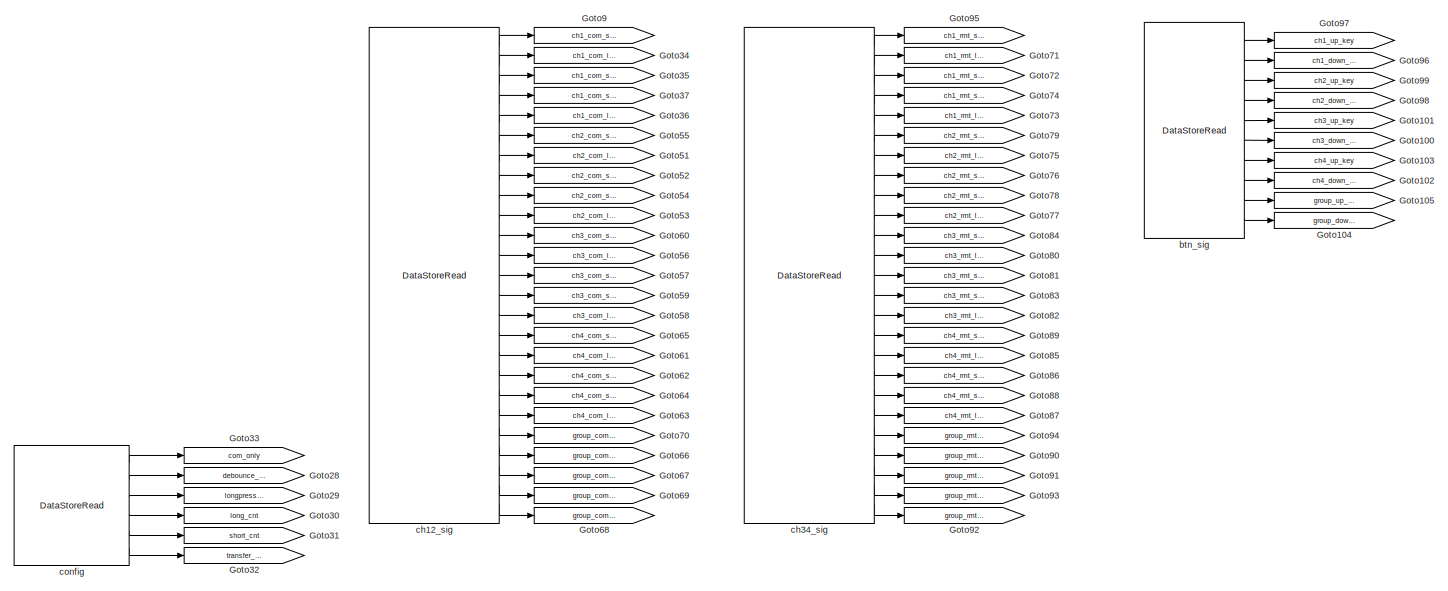
[diagram: root canvas - part 1/7, top center region]
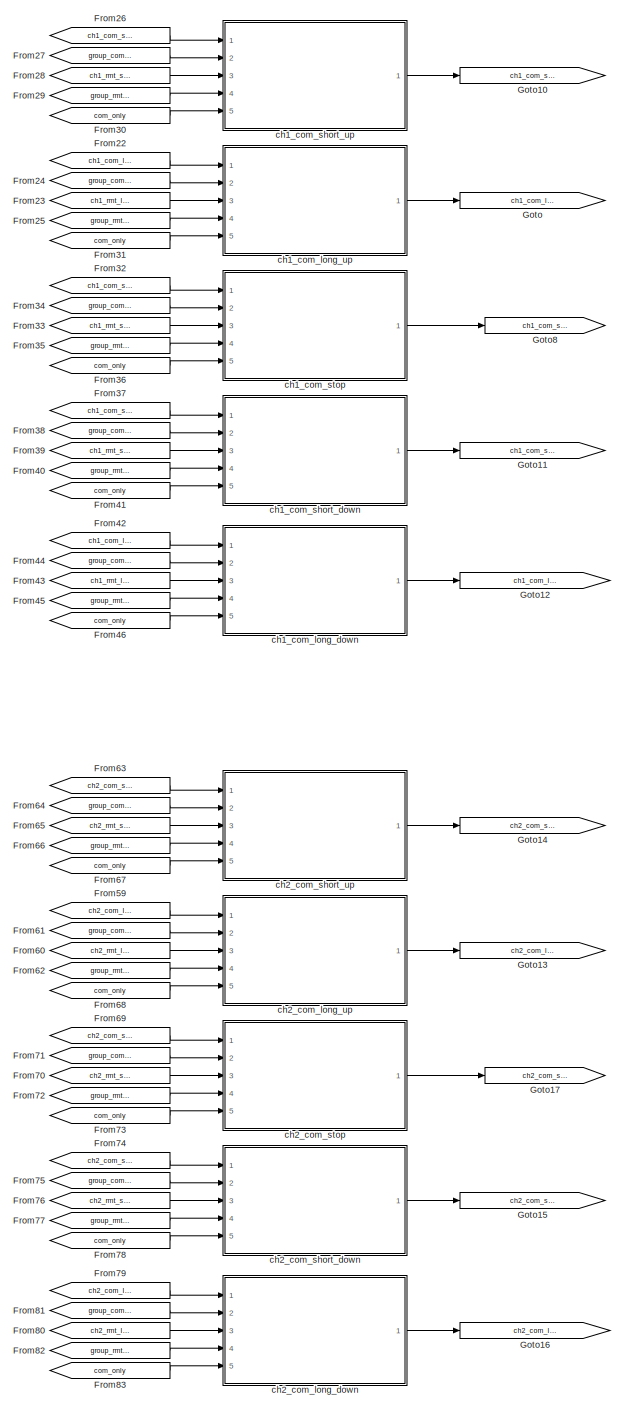
[diagram: root canvas - part 2/7, middle left region]
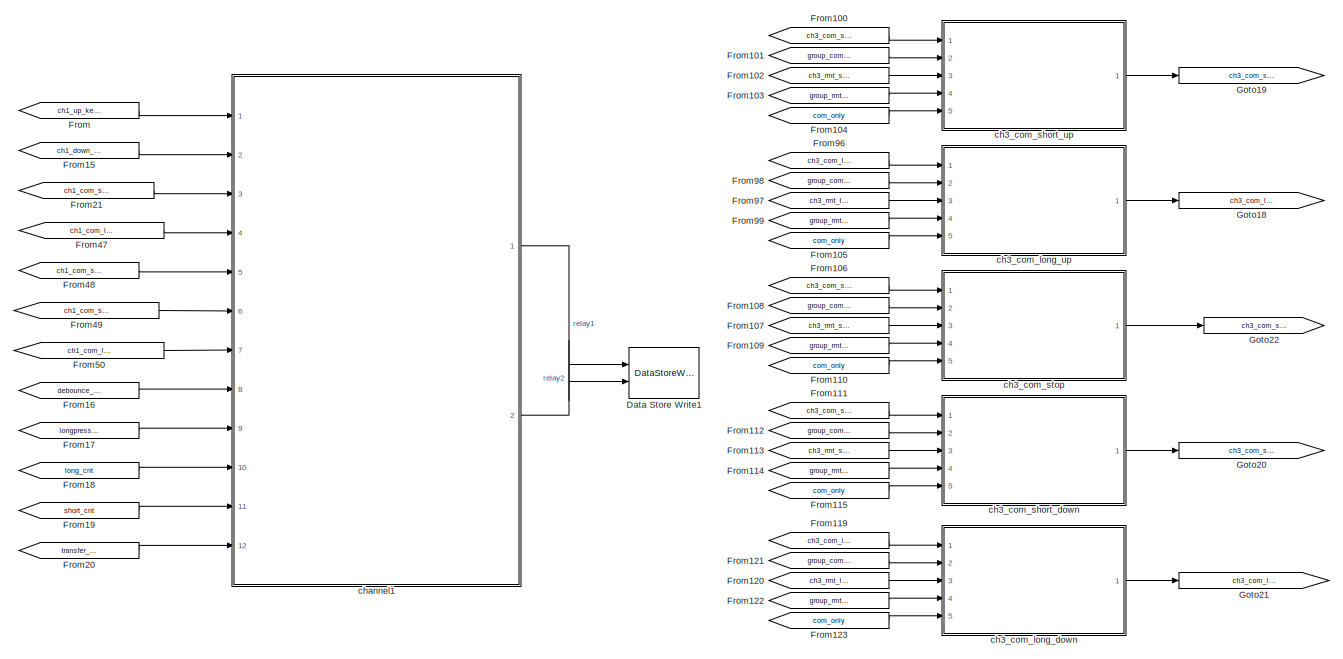
[diagram: root canvas - part 3/7, central region]
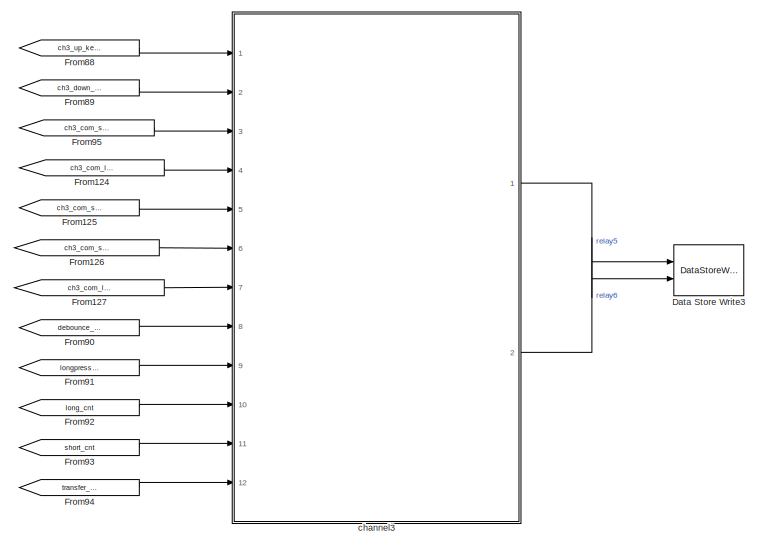
[diagram: root canvas - part 4/7, middle right region]
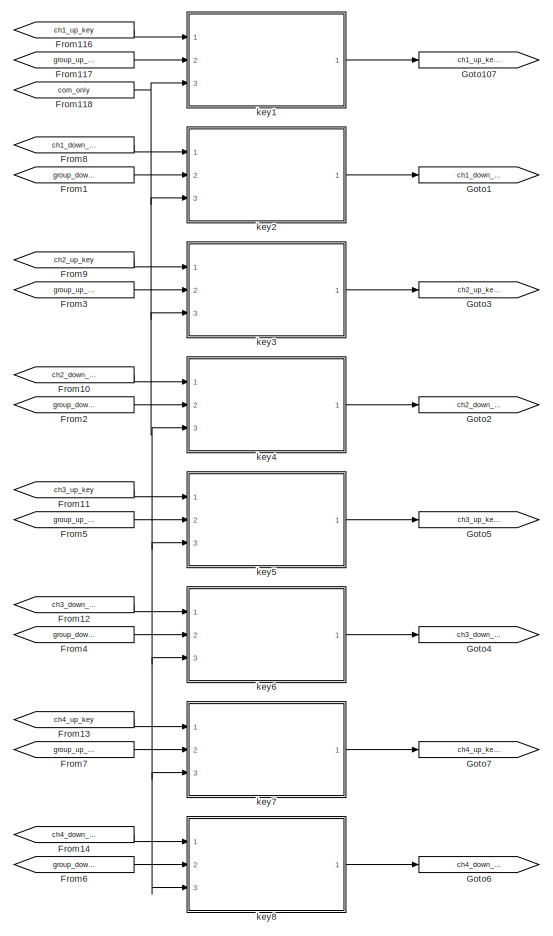
[diagram: root canvas - part 5/7, middle left region]
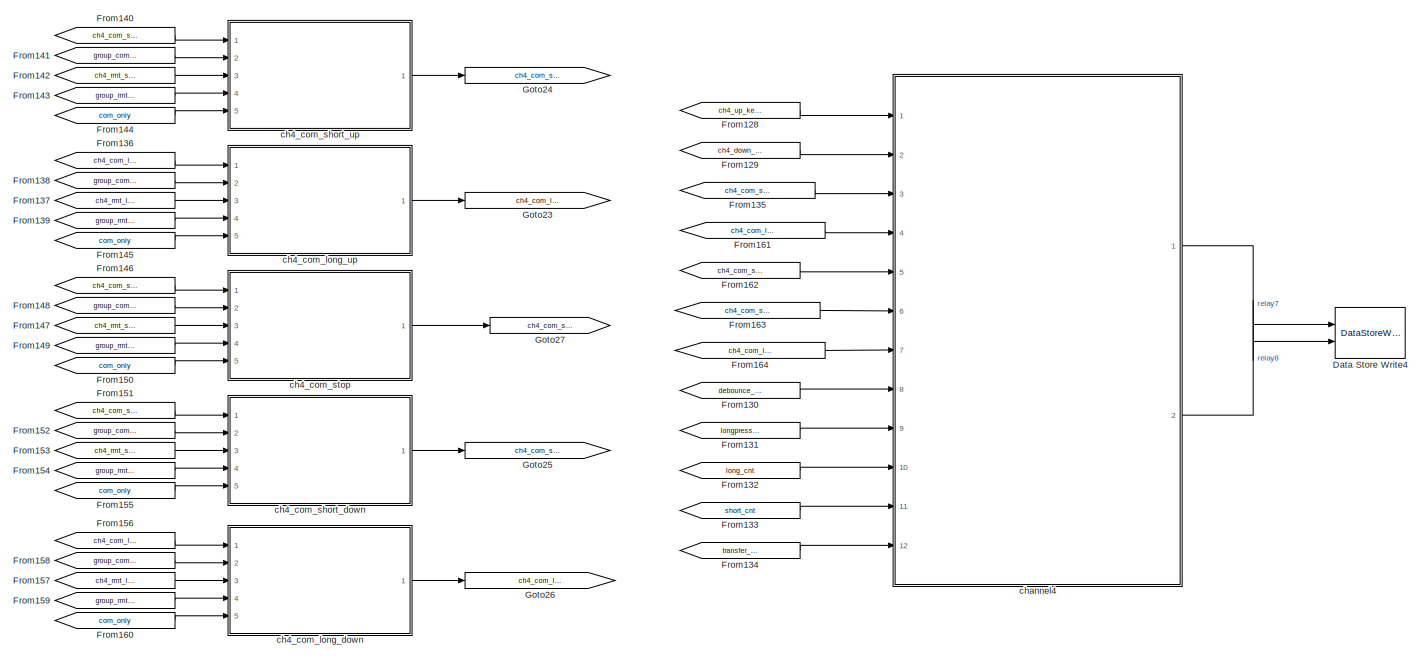
[diagram: root canvas - part 6/7, bottom right region]
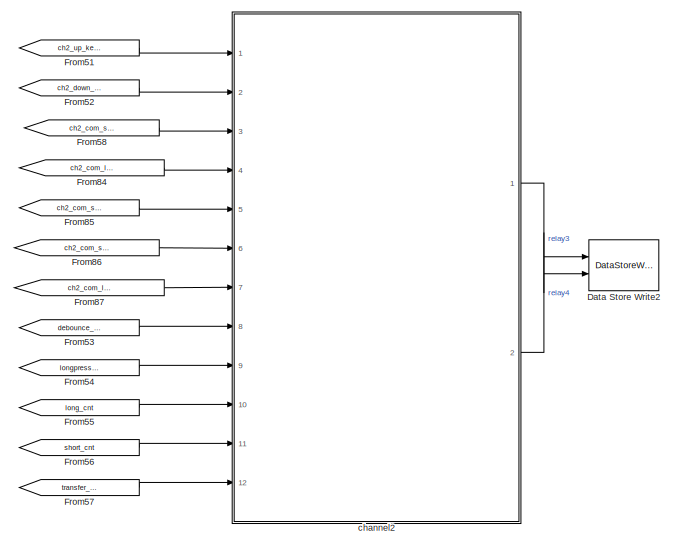
[diagram: root canvas - part 7/7, bottom center region]
MODEL slx_22f0414de832
KIND model
BLOCK [DataStoreWrite] Data Store Write1
  DataStoreElements = relay(1)#relay(2)
  DataStoreName = relay
  IndexOptions = Index vector (dialog)
  Indices = 1
  OutputSizes = 1
  Ports = [2]
BLOCK [DataStoreWrite] Data Store Write2
  DataStoreElements = relay(3)#relay(4)
  DataStoreName = relay
  IndexOptions = Index vector (dialog)
  Indices = 1
  OutputSizes = 1
  Ports = [2]
BLOCK [DataStoreWrite] Data Store Write3
  DataStoreElements = relay(5)#relay(6)
  DataStoreName = relay
  IndexOptions = Index vector (dialog)
  Indices = 1
  OutputSizes = 1
  Ports = [2]
BLOCK [DataStoreWrite] Data Store Write4
  DataStoreElements = relay(7)#relay(8)
  DataStoreName = relay
  IndexOptions = Index vector (dialog)
  Indices = 1
  OutputSizes = 1
  Ports = [2]
BLOCK [From] From
  GotoTag = ch1_up_key_sig
BLOCK [From] From1
  GotoTag = group_down_key
BLOCK [From] From10
  GotoTag = ch2_down_key
BLOCK [From] From100
  GotoTag = ch3_com_short_up
BLOCK [From] From101
  GotoTag = group_com_short_up
BLOCK [From] From102
  GotoTag = ch3_rmt_short_up
BLOCK [From] From103
  GotoTag = group_rmt_short_up
BLOCK [From] From104
  GotoTag = com_only
BLOCK [From] From105
  GotoTag = com_only
BLOCK [From] From106
  GotoTag = ch3_com_stop
BLOCK [From] From107
  GotoTag = ch3_rmt_stop
BLOCK [From] From108
  GotoTag = group_com_stop
BLOCK [From] From109
  GotoTag = group_rmt_stop
BLOCK [From] From11
  GotoTag = ch3_up_key
BLOCK [From] From110
  GotoTag = com_only
BLOCK [From] From111
  GotoTag = ch3_com_short_down
BLOCK [From] From112
  GotoTag = group_com_short_down
BLOCK [From] From113
  GotoTag = ch3_rmt_short_down
BLOCK [From] From114
  GotoTag = group_rmt_short_down
BLOCK [From] From115
  GotoTag = com_only
BLOCK [From] From116
  GotoTag = ch1_up_key
BLOCK [From] From117
  GotoTag = group_up_key
BLOCK [From] From118
  GotoTag = com_only
BLOCK [From] From119
  GotoTag = ch3_com_long_down
BLOCK [From] From12
  GotoTag = ch3_down_key
BLOCK [From] From120
  GotoTag = ch3_rmt_long_down
BLOCK [From] From121
  GotoTag = group_com_long_down
BLOCK [From] From122
  GotoTag = group_rmt_long_down
BLOCK [From] From123
  GotoTag = com_only
BLOCK [From] From124
  GotoTag = ch3_com_long_up_sig
BLOCK [From] From125
  GotoTag = ch3_com_stop_sig
BLOCK [From] From126
  GotoTag = ch3_com_short_down_sig
BLOCK [From] From127
  GotoTag = ch3_com_long_down_sig
BLOCK [From] From128
  GotoTag = ch4_up_key_sig
BLOCK [From] From129
  GotoTag = ch4_down_key_sig
BLOCK [From] From13
  GotoTag = ch4_up_key
BLOCK [From] From130
  GotoTag = debounce_cnt
BLOCK [From] From131
  GotoTag = longpress_cnt
BLOCK [From] From132
  GotoTag = long_cnt
BLOCK [From] From133
  GotoTag = short_cnt
BLOCK [From] From134
  GotoTag = transfer_cnt
BLOCK [From] From135
  GotoTag = ch4_com_short_up_sig
BLOCK [From] From136
  GotoTag = ch4_com_long_up
BLOCK [From] From137
  GotoTag = ch4_rmt_long_up
BLOCK [From] From138
  GotoTag = group_com_long_up
BLOCK [From] From139
  GotoTag = group_rmt_long_up
BLOCK [From] From14
  GotoTag = ch4_down_key
BLOCK [From] From140
  GotoTag = ch4_com_short_up
BLOCK [From] From141
  GotoTag = group_com_short_up
BLOCK [From] From142
  GotoTag = ch4_rmt_short_up
BLOCK [From] From143
  GotoTag = group_rmt_short_up
BLOCK [From] From144
  GotoTag = com_only
BLOCK [From] From145
  GotoTag = com_only
BLOCK [From] From146
  GotoTag = ch4_com_stop
BLOCK [From] From147
  GotoTag = ch4_rmt_stop
BLOCK [From] From148
  GotoTag = group_com_stop
BLOCK [From] From149
  GotoTag = group_rmt_stop
BLOCK [From] From15
  GotoTag = ch1_down_key_sig
BLOCK [From] From150
  GotoTag = com_only
BLOCK [From] From151
  GotoTag = ch4_com_short_down
BLOCK [From] From152
  GotoTag = group_com_short_down
BLOCK [From] From153
  GotoTag = ch4_rmt_short_down
BLOCK [From] From154
  GotoTag = group_rmt_short_down
BLOCK [From] From155
  GotoTag = com_only
BLOCK [From] From156
  GotoTag = ch4_com_long_down
BLOCK [From] From157
  GotoTag = ch4_rmt_long_down
BLOCK [From] From158
  GotoTag = group_com_long_down
BLOCK [From] From159
  GotoTag = group_rmt_long_down
BLOCK [From] From16
  GotoTag = debounce_cnt
BLOCK [From] From160
  GotoTag = com_only
BLOCK [From] From161
  GotoTag = ch4_com_long_up_sig
BLOCK [From] From162
  GotoTag = ch4_com_stop_sig
BLOCK [From] From163
  GotoTag = ch4_com_short_down_sig
BLOCK [From] From164
  GotoTag = ch4_com_long_down_sig
BLOCK [From] From17
  GotoTag = longpress_cnt
BLOCK [From] From18
  GotoTag = long_cnt
BLOCK [From] From19
  GotoTag = short_cnt
BLOCK [From] From2
  GotoTag = group_down_key
BLOCK [From] From20
  GotoTag = transfer_cnt
BLOCK [From] From21
  GotoTag = ch1_com_short_up_sig
BLOCK [From] From22
  GotoTag = ch1_com_long_up
BLOCK [From] From23
  GotoTag = ch1_rmt_long_up
BLOCK [From] From24
  GotoTag = group_com_long_up
BLOCK [From] From25
  GotoTag = group_rmt_long_up
BLOCK [From] From26
  GotoTag = ch1_com_short_up
BLOCK [From] From27
  GotoTag = group_com_short_up
BLOCK [From] From28
  GotoTag = ch1_rmt_short_up
BLOCK [From] From29
  GotoTag = group_rmt_short_up
BLOCK [From] From3
  GotoTag = group_up_key
BLOCK [From] From30
  GotoTag = com_only
BLOCK [From] From31
  GotoTag = com_only
BLOCK [From] From32
  GotoTag = ch1_com_stop
BLOCK [From] From33
  GotoTag = ch1_rmt_stop
BLOCK [From] From34
  GotoTag = group_com_stop
BLOCK [From] From35
  GotoTag = group_rmt_stop
BLOCK [From] From36
  GotoTag = com_only
BLOCK [From] From37
  GotoTag = ch1_com_short_down
BLOCK [From] From38
  GotoTag = group_com_short_down
BLOCK [From] From39
  GotoTag = ch1_rmt_short_down
BLOCK [From] From4
  GotoTag = group_down_key
BLOCK [From] From40
  GotoTag = group_rmt_short_down
BLOCK [From] From41
  GotoTag = com_only
BLOCK [From] From42
  GotoTag = ch1_com_long_down
BLOCK [From] From43
  GotoTag = ch1_rmt_long_down
BLOCK [From] From44
  GotoTag = group_com_long_down
BLOCK [From] From45
  GotoTag = group_rmt_long_down
BLOCK [From] From46
  GotoTag = com_only
BLOCK [From] From47
  GotoTag = ch1_com_long_up_sig
BLOCK [From] From48
  GotoTag = ch1_com_stop_sig
BLOCK [From] From49
  GotoTag = ch1_com_short_down_sig
BLOCK [From] From5
  GotoTag = group_up_key
BLOCK [From] From50
  GotoTag = ch1_com_long_down_sig
BLOCK [From] From51
  GotoTag = ch2_up_key_sig
BLOCK [From] From52
  GotoTag = ch2_down_key_sig
BLOCK [From] From53
  GotoTag = debounce_cnt
BLOCK [From] From54
  GotoTag = longpress_cnt
BLOCK [From] From55
  GotoTag = long_cnt
BLOCK [From] From56
  GotoTag = short_cnt
BLOCK [From] From57
  GotoTag = transfer_cnt
BLOCK [From] From58
  GotoTag = ch2_com_short_up_sig
BLOCK [From] From59
  GotoTag = ch2_com_long_up
BLOCK [From] From6
  GotoTag = group_down_key
BLOCK [From] From60
  GotoTag = ch2_rmt_long_up
BLOCK [From] From61
  GotoTag = group_com_long_up
BLOCK [From] From62
  GotoTag = group_rmt_long_up
BLOCK [From] From63
  GotoTag = ch2_com_short_up
BLOCK [From] From64
  GotoTag = group_com_short_up
BLOCK [From] From65
  GotoTag = ch2_rmt_short_up
BLOCK [From] From66
  GotoTag = group_rmt_short_up
BLOCK [From] From67
  GotoTag = com_only
BLOCK [From] From68
  GotoTag = com_only
BLOCK [From] From69
  GotoTag = ch2_com_stop
BLOCK [From] From7
  GotoTag = group_up_key
BLOCK [From] From70
  GotoTag = ch2_rmt_stop
BLOCK [From] From71
  GotoTag = group_com_stop
BLOCK [From] From72
  GotoTag = group_rmt_stop
BLOCK [From] From73
  GotoTag = com_only
BLOCK [From] From74
  GotoTag = ch2_com_short_down
BLOCK [From] From75
  GotoTag = group_com_short_down
BLOCK [From] From76
  GotoTag = ch2_rmt_short_down
BLOCK [From] From77
  GotoTag = group_rmt_short_down
BLOCK [From] From78
  GotoTag = com_only
BLOCK [From] From79
  GotoTag = ch2_com_long_down
BLOCK [From] From8
  GotoTag = ch1_down_key
BLOCK [From] From80
  GotoTag = ch2_rmt_long_down
BLOCK [From] From81
  GotoTag = group_com_long_down
BLOCK [From] From82
  GotoTag = group_rmt_long_down
BLOCK [From] From83
  GotoTag = com_only
BLOCK [From] From84
  GotoTag = ch2_com_long_up_sig
BLOCK [From] From85
  GotoTag = ch2_com_stop_sig
BLOCK [From] From86
  GotoTag = ch2_com_short_down_sig
BLOCK [From] From87
  GotoTag = ch2_com_long_down_sig
BLOCK [From] From88
  GotoTag = ch3_up_key_sig
BLOCK [From] From89
  GotoTag = ch3_down_key_sig
BLOCK [From] From9
  GotoTag = ch2_up_key
BLOCK [From] From90
  GotoTag = debounce_cnt
BLOCK [From] From91
  GotoTag = longpress_cnt
BLOCK [From] From92
  GotoTag = long_cnt
BLOCK [From] From93
  GotoTag = short_cnt
BLOCK [From] From94
  GotoTag = transfer_cnt
BLOCK [From] From95
  GotoTag = ch3_com_short_up_sig
BLOCK [From] From96
  GotoTag = ch3_com_long_up
BLOCK [From] From97
  GotoTag = ch3_rmt_long_up
BLOCK [From] From98
  GotoTag = group_com_long_up
BLOCK [From] From99
  GotoTag = group_rmt_long_up
BLOCK [Goto] Goto
  GotoTag = ch1_com_long_up_sig
BLOCK [Goto] Goto1
  GotoTag = ch1_down_key_sig
BLOCK [Goto] Goto10
  GotoTag = ch1_com_short_up_sig
BLOCK [Goto] Goto100
  GotoTag = ch3_down_key
BLOCK [Goto] Goto101
  GotoTag = ch3_up_key
BLOCK [Goto] Goto102
  GotoTag = ch4_down_key
BLOCK [Goto] Goto103
  GotoTag = ch4_up_key
BLOCK [Goto] Goto104
  GotoTag = group_down_key
BLOCK [Goto] Goto105
  GotoTag = group_up_key
BLOCK [Goto] Goto107
  GotoTag = ch1_up_key_sig
BLOCK [Goto] Goto11
  GotoTag = ch1_com_short_down_sig
BLOCK [Goto] Goto12
  GotoTag = ch1_com_long_down_sig
BLOCK [Goto] Goto13
  GotoTag = ch2_com_long_up_sig
BLOCK [Goto] Goto14
  GotoTag = ch2_com_short_up_sig
BLOCK [Goto] Goto15
  GotoTag = ch2_com_short_down_sig
BLOCK [Goto] Goto16
  GotoTag = ch2_com_long_down_sig
BLOCK [Goto] Goto17
  GotoTag = ch2_com_stop_sig
BLOCK [Goto] Goto18
  GotoTag = ch3_com_long_up_sig
BLOCK [Goto] Goto19
  GotoTag = ch3_com_short_up_sig
BLOCK [Goto] Goto2
  GotoTag = ch2_down_key_sig
BLOCK [Goto] Goto20
  GotoTag = ch3_com_short_down_sig
BLOCK [Goto] Goto21
  GotoTag = ch3_com_long_down_sig
BLOCK [Goto] Goto22
  GotoTag = ch3_com_stop_sig
BLOCK [Goto] Goto23
  GotoTag = ch4_com_long_up_sig
BLOCK [Goto] Goto24
  GotoTag = ch4_com_short_up_sig
BLOCK [Goto] Goto25
  GotoTag = ch4_com_short_down_sig
BLOCK [Goto] Goto26
  GotoTag = ch4_com_long_down_sig
BLOCK [Goto] Goto27
  GotoTag = ch4_com_stop_sig
BLOCK [Goto] Goto28
  GotoTag = debounce_cnt
BLOCK [Goto] Goto29
  GotoTag = longpress_cnt
BLOCK [Goto] Goto3
  GotoTag = ch2_up_key_sig
BLOCK [Goto] Goto30
  GotoTag = long_cnt
BLOCK [Goto] Goto31
  GotoTag = short_cnt
BLOCK [Goto] Goto32
  GotoTag = transfer_cnt
BLOCK [Goto] Goto33
  GotoTag = com_only
BLOCK [Goto] Goto34
  GotoTag = ch1_com_long_up
BLOCK [Goto] Goto35
  GotoTag = ch1_com_stop
BLOCK [Goto] Goto36
  GotoTag = ch1_com_long_down
BLOCK [Goto] Goto37
  GotoTag = ch1_com_short_down
BLOCK [Goto] Goto4
  GotoTag = ch3_down_key_sig
BLOCK [Goto] Goto5
  GotoTag = ch3_up_key_sig
BLOCK [Goto] Goto51
  GotoTag = ch2_com_long_up
BLOCK [Goto] Goto52
  GotoTag = ch2_com_stop
BLOCK [Goto] Goto53
  GotoTag = ch2_com_long_down
BLOCK [Goto] Goto54
  GotoTag = ch2_com_short_down
BLOCK [Goto] Goto55
  GotoTag = ch2_com_short_up
BLOCK [Goto] Goto56
  GotoTag = ch3_com_long_up
BLOCK [Goto] Goto57
  GotoTag = ch3_com_stop
BLOCK [Goto] Goto58
  GotoTag = ch3_com_long_down
BLOCK [Goto] Goto59
  GotoTag = ch3_com_short_down
BLOCK [Goto] Goto6
  GotoTag = ch4_down_key_sig
BLOCK [Goto] Goto60
  GotoTag = ch3_com_short_up
BLOCK [Goto] Goto61
  GotoTag = ch4_com_long_up
BLOCK [Goto] Goto62
  GotoTag = ch4_com_stop
BLOCK [Goto] Goto63
  GotoTag = ch4_com_long_down
BLOCK [Goto] Goto64
  GotoTag = ch4_com_short_down
BLOCK [Goto] Goto65
  GotoTag = ch4_com_short_up
BLOCK [Goto] Goto66
  GotoTag = group_com_long_up
BLOCK [Goto] Goto67
  GotoTag = group_com_stop
BLOCK [Goto] Goto68
  GotoTag = group_com_long_down
BLOCK [Goto] Goto69
  GotoTag = group_com_short_down
BLOCK [Goto] Goto7
  GotoTag = ch4_up_key_sig
BLOCK [Goto] Goto70
  GotoTag = group_com_short_up
BLOCK [Goto] Goto71
  GotoTag = ch1_rmt_long_up
BLOCK [Goto] Goto72
  GotoTag = ch1_rmt_stop
BLOCK [Goto] Goto73
  GotoTag = ch1_rmt_long_down
BLOCK [Goto] Goto74
  GotoTag = ch1_rmt_short_down
BLOCK [Goto] Goto75
  GotoTag = ch2_rmt_long_up
BLOCK [Goto] Goto76
  GotoTag = ch2_rmt_stop
BLOCK [Goto] Goto77
  GotoTag = ch2_rmt_long_down
BLOCK [Goto] Goto78
  GotoTag = ch2_rmt_short_down
BLOCK [Goto] Goto79
  GotoTag = ch2_rmt_short_up
BLOCK [Goto] Goto8
  GotoTag = ch1_com_stop_sig
BLOCK [Goto] Goto80
  GotoTag = ch3_rmt_long_up
BLOCK [Goto] Goto81
  GotoTag = ch3_rmt_stop
BLOCK [Goto] Goto82
  GotoTag = ch3_rmt_long_down
BLOCK [Goto] Goto83
  GotoTag = ch3_rmt_short_down
BLOCK [Goto] Goto84
  GotoTag = ch3_rmt_short_up
BLOCK [Goto] Goto85
  GotoTag = ch4_rmt_long_up
BLOCK [Goto] Goto86
  GotoTag = ch4_rmt_stop
BLOCK [Goto] Goto87
  GotoTag = ch4_rmt_long_down
BLOCK [Goto] Goto88
  GotoTag = ch4_rmt_short_down
BLOCK [Goto] Goto89
  GotoTag = ch4_rmt_short_up
BLOCK [Goto] Goto9
  GotoTag = ch1_com_short_up
BLOCK [Goto] Goto90
  GotoTag = group_rmt_long_up
BLOCK [Goto] Goto91
  GotoTag = group_rmt_stop
BLOCK [Goto] Goto92
  GotoTag = group_rmt_long_down
BLOCK [Goto] Goto93
  GotoTag = group_rmt_short_down
BLOCK [Goto] Goto94
  GotoTag = group_rmt_short_up
BLOCK [Goto] Goto95
  GotoTag = ch1_rmt_short_up
BLOCK [Goto] Goto96
  GotoTag = ch1_down_key
BLOCK [Goto] Goto97
  GotoTag = ch1_up_key
BLOCK [Goto] Goto98
  GotoTag = ch2_down_key
BLOCK [Goto] Goto99
  GotoTag = ch2_up_key
BLOCK [DataStoreRead] btn_sig
  DataStoreElements = sys_regs.inputs(101)#sys_regs.inputs(102)#sys_regs.inputs(103)#sys_regs.inputs(104)#sys_regs.inputs(105)#sys_regs.inputs(106)#sys_regs.inputs(107)#sys_regs.inputs(108)#sys_regs.inputs(109)#sys_regs.inputs(110)
  DataStoreName = sys_regs
  IndexOptions = Index vector (dialog)
  Indices = 1
  OutputSizes = 1
  Ports = [0, 10]
BLOCK [DataStoreRead] ch12_sig
  DataStoreElements = sys_regs.holdings(111)#sys_regs.holdings(112)#sys_regs.holdings(113)#sys_regs.holdings(114)#sys_regs.holdings(115)#sys_regs.holdings(116)#sys_regs.holdings(117)#sys_regs.holdings(118)#sys_regs.holdings(119)#sys_regs.holdings(120)#sys_regs.holdings(121)#sys_regs.holdings(122)#sys_regs.holdings(123)#sys_regs.holdings(124)#sys_regs.holdings(125)#sys_regs.holdings(126)#sys_regs.holdings(127)#sys_regs....<+174ch>
  DataStoreName = sys_regs
  IndexOptions = Index vector (dialog)
  Indices = 1
  OutputSizes = 1
  Ports = [0, 25]
BLOCK [ModelReference] ch1_com_long_down
  ModelNameDialog = com_process.slx
  ModelReferenceVersion = 1.9
  Ports = [5, 1]
BLOCK [ModelReference] ch1_com_long_up
  ModelNameDialog = com_process.slx
  ModelReferenceVersion = 1.9
  Ports = [5, 1]
BLOCK [ModelReference] ch1_com_short_down
  ModelNameDialog = com_process.slx
  ModelReferenceVersion = 1.9
  Ports = [5, 1]
BLOCK [ModelReference] ch1_com_short_up
  ModelNameDialog = com_process.slx
  ModelReferenceVersion = 1.9
  Ports = [5, 1]
BLOCK [ModelReference] ch1_com_stop
  ModelNameDialog = com_process.slx
  ModelReferenceVersion = 1.9
  Ports = [5, 1]
BLOCK [ModelReference] ch2_com_long_down
  ModelNameDialog = com_process.slx
  ModelReferenceVersion = 1.9
  Ports = [5, 1]
BLOCK [ModelReference] ch2_com_long_up
  ModelNameDialog = com_process.slx
  ModelReferenceVersion = 1.9
  Ports = [5, 1]
BLOCK [ModelReference] ch2_com_short_down
  ModelNameDialog = com_process.slx
  ModelReferenceVersion = 1.9
  Ports = [5, 1]
BLOCK [ModelReference] ch2_com_short_up
  ModelNameDialog = com_process.slx
  ModelReferenceVersion = 1.9
  Ports = [5, 1]
BLOCK [ModelReference] ch2_com_stop
  ModelNameDialog = com_process.slx
  ModelReferenceVersion = 1.9
  Ports = [5, 1]
BLOCK [DataStoreRead] ch34_sig
  DataStoreElements = sys_regs.inputs(121)#sys_regs.inputs(122)#sys_regs.inputs(123)#sys_regs.inputs(124)#sys_regs.inputs(125)#sys_regs.inputs(126)#sys_regs.inputs(127)#sys_regs.inputs(128)#sys_regs.inputs(129)#sys_regs.inputs(130)#sys_regs.inputs(131)#sys_regs.inputs(132)#sys_regs.inputs(133)#sys_regs.inputs(134)#sys_regs.inputs(135)#sys_regs.inputs(136)#sys_regs.inputs(137)#sys_regs.inputs(138)#sys_regs.inputs(139)#s...<+124ch>
  DataStoreName = sys_regs
  IndexOptions = Index vector (dialog)
  Indices = 1
  OutputSizes = 1
  Ports = [0, 25]
BLOCK [ModelReference] ch3_com_long_down
  ModelNameDialog = com_process.slx
  ModelReferenceVersion = 1.9
  Ports = [5, 1]
BLOCK [ModelReference] ch3_com_long_up
  ModelNameDialog = com_process.slx
  ModelReferenceVersion = 1.9
  Ports = [5, 1]
BLOCK [ModelReference] ch3_com_short_down
  ModelNameDialog = com_process.slx
  ModelReferenceVersion = 1.9
  Ports = [5, 1]
BLOCK [ModelReference] ch3_com_short_up
  ModelNameDialog = com_process.slx
  ModelReferenceVersion = 1.9
  Ports = [5, 1]
BLOCK [ModelReference] ch3_com_stop
  ModelNameDialog = com_process.slx
  ModelReferenceVersion = 1.9
  Ports = [5, 1]
BLOCK [ModelReference] ch4_com_long_down
  ModelNameDialog = com_process.slx
  ModelReferenceVersion = 1.9
  Ports = [5, 1]
BLOCK [ModelReference] ch4_com_long_up
  ModelNameDialog = com_process.slx
  ModelReferenceVersion = 1.9
  Ports = [5, 1]
BLOCK [ModelReference] ch4_com_short_down
  ModelNameDialog = com_process.slx
  ModelReferenceVersion = 1.9
  Ports = [5, 1]
BLOCK [ModelReference] ch4_com_short_up
  ModelNameDialog = com_process.slx
  ModelReferenceVersion = 1.9
  Ports = [5, 1]
BLOCK [ModelReference] ch4_com_stop
  ModelNameDialog = com_process.slx
  ModelReferenceVersion = 1.9
  Ports = [5, 1]
BLOCK [ModelReference] channel1
  ModelNameDialog = motor_ctrl.slx
  ModelReferenceVersion = 1.19
  Ports = [12, 2]
BLOCK [ModelReference] channel2
  ModelNameDialog = motor_ctrl.slx
  ModelReferenceVersion = 1.19
  Ports = [12, 2]
BLOCK [ModelReference] channel3
  ModelNameDialog = motor_ctrl.slx
  ModelReferenceVersion = 1.19
  Ports = [12, 2]
BLOCK [ModelReference] channel4
  ModelNameDialog = motor_ctrl.slx
  ModelReferenceVersion = 1.19
  Ports = [12, 2]
BLOCK [DataStoreRead] config
  DataStoreElements = sys_regs.holdings(38)#sys_regs.holdings(101)#sys_regs.holdings(102)#sys_regs.holdings(103)#sys_regs.holdings(104)#sys_regs.holdings(105)
  DataStoreName = sys_regs
  IndexOptions = Index vector (dialog)
  Indices = 1
  OutputSizes = 1
  Ports = [0, 6]
BLOCK [ModelReference] key1
  ModelNameDialog = key_process.slx
  ModelReferenceVersion = 1.7
  Ports = [3, 1]
BLOCK [ModelReference] key2
  ModelNameDialog = key_process.slx
  ModelReferenceVersion = 1.7
  Ports = [3, 1]
BLOCK [ModelReference] key3
  ModelNameDialog = key_process.slx
  ModelReferenceVersion = 1.7
  Ports = [3, 1]
BLOCK [ModelReference] key4
  ModelNameDialog = key_process.slx
  ModelReferenceVersion = 1.7
  Ports = [3, 1]
BLOCK [ModelReference] key5
  ModelNameDialog = key_process.slx
  ModelReferenceVersion = 1.7
  Ports = [3, 1]
BLOCK [ModelReference] key6
  ModelNameDialog = key_process.slx
  ModelReferenceVersion = 1.7
  Ports = [3, 1]
BLOCK [ModelReference] key7
  ModelNameDialog = key_process.slx
  ModelReferenceVersion = 1.7
  Ports = [3, 1]
BLOCK [ModelReference] key8
  ModelNameDialog = key_process.slx
  ModelReferenceVersion = 1.7
  Ports = [3, 1]
LINE From100:1 -> ch3_com_short_up:1
LINE From101:1 -> ch3_com_short_up:2
LINE From102:1 -> ch3_com_short_up:3
LINE From103:1 -> ch3_com_short_up:4
LINE From104:1 -> ch3_com_short_up:5
LINE From105:1 -> ch3_com_long_up:5
LINE From106:1 -> ch3_com_stop:1
LINE From107:1 -> ch3_com_stop:3
LINE From108:1 -> ch3_com_stop:2
LINE From109:1 -> ch3_com_stop:4
LINE From10:1 -> key4:1
LINE From110:1 -> ch3_com_stop:5
LINE From111:1 -> ch3_com_short_down:1
LINE From112:1 -> ch3_com_short_down:2
LINE From113:1 -> ch3_com_short_down:3
LINE From114:1 -> ch3_com_short_down:4
LINE From115:1 -> ch3_com_short_down:5
LINE From116:1 -> key1:1
LINE From117:1 -> key1:2
NET From118:1 -> key1:3, key2:3, key3:3, key4:3, key5:3, key6:3, key7:3, key8:3
LINE From119:1 -> ch3_com_long_down:1
LINE From11:1 -> key5:1
LINE From120:1 -> ch3_com_long_down:3
LINE From121:1 -> ch3_com_long_down:2
LINE From122:1 -> ch3_com_long_down:4
LINE From123:1 -> ch3_com_long_down:5
LINE From124:1 -> channel3:4
LINE From125:1 -> channel3:5
LINE From126:1 -> channel3:6
LINE From127:1 -> channel3:7
LINE From128:1 -> channel4:1
LINE From129:1 -> channel4:2
LINE From12:1 -> key6:1
LINE From130:1 -> channel4:8
LINE From131:1 -> channel4:9
LINE From132:1 -> channel4:10
LINE From133:1 -> channel4:11
LINE From134:1 -> channel4:12
LINE From135:1 -> channel4:3
LINE From136:1 -> ch4_com_long_up:1
LINE From137:1 -> ch4_com_long_up:3
LINE From138:1 -> ch4_com_long_up:2
LINE From139:1 -> ch4_com_long_up:4
LINE From13:1 -> key7:1
LINE From140:1 -> ch4_com_short_up:1
LINE From141:1 -> ch4_com_short_up:2
LINE From142:1 -> ch4_com_short_up:3
LINE From143:1 -> ch4_com_short_up:4
LINE From144:1 -> ch4_com_short_up:5
LINE From145:1 -> ch4_com_long_up:5
LINE From146:1 -> ch4_com_stop:1
LINE From147:1 -> ch4_com_stop:3
LINE From148:1 -> ch4_com_stop:2
LINE From149:1 -> ch4_com_stop:4
LINE From14:1 -> key8:1
LINE From150:1 -> ch4_com_stop:5
LINE From151:1 -> ch4_com_short_down:1
LINE From152:1 -> ch4_com_short_down:2
LINE From153:1 -> ch4_com_short_down:3
LINE From154:1 -> ch4_com_short_down:4
LINE From155:1 -> ch4_com_short_down:5
LINE From156:1 -> ch4_com_long_down:1
LINE From157:1 -> ch4_com_long_down:3
LINE From158:1 -> ch4_com_long_down:2
LINE From159:1 -> ch4_com_long_down:4
LINE From15:1 -> channel1:2
LINE From160:1 -> ch4_com_long_down:5
LINE From161:1 -> channel4:4
LINE From162:1 -> channel4:5
LINE From163:1 -> channel4:6
LINE From164:1 -> channel4:7
LINE From16:1 -> channel1:8
LINE From17:1 -> channel1:9
LINE From18:1 -> channel1:10
LINE From19:1 -> channel1:11
LINE From1:1 -> key2:2
LINE From20:1 -> channel1:12
LINE From21:1 -> channel1:3
LINE From22:1 -> ch1_com_long_up:1
LINE From23:1 -> ch1_com_long_up:3
LINE From24:1 -> ch1_com_long_up:2
LINE From25:1 -> ch1_com_long_up:4
LINE From26:1 -> ch1_com_short_up:1
LINE From27:1 -> ch1_com_short_up:2
LINE From28:1 -> ch1_com_short_up:3
LINE From29:1 -> ch1_com_short_up:4
LINE From2:1 -> key4:2
LINE From30:1 -> ch1_com_short_up:5
LINE From31:1 -> ch1_com_long_up:5
LINE From32:1 -> ch1_com_stop:1
LINE From33:1 -> ch1_com_stop:3
LINE From34:1 -> ch1_com_stop:2
LINE From35:1 -> ch1_com_stop:4
LINE From36:1 -> ch1_com_stop:5
LINE From37:1 -> ch1_com_short_down:1
LINE From38:1 -> ch1_com_short_down:2
LINE From39:1 -> ch1_com_short_down:3
LINE From3:1 -> key3:2
LINE From40:1 -> ch1_com_short_down:4
LINE From41:1 -> ch1_com_short_down:5
LINE From42:1 -> ch1_com_long_down:1
LINE From43:1 -> ch1_com_long_down:3
LINE From44:1 -> ch1_com_long_down:2
LINE From45:1 -> ch1_com_long_down:4
LINE From46:1 -> ch1_com_long_down:5
LINE From47:1 -> channel1:4
LINE From48:1 -> channel1:5
LINE From49:1 -> channel1:6
LINE From4:1 -> key6:2
LINE From50:1 -> channel1:7
LINE From51:1 -> channel2:1
LINE From52:1 -> channel2:2
LINE From53:1 -> channel2:8
LINE From54:1 -> channel2:9
LINE From55:1 -> channel2:10
LINE From56:1 -> channel2:11
LINE From57:1 -> channel2:12
LINE From58:1 -> channel2:3
LINE From59:1 -> ch2_com_long_up:1
LINE From5:1 -> key5:2
LINE From60:1 -> ch2_com_long_up:3
LINE From61:1 -> ch2_com_long_up:2
LINE From62:1 -> ch2_com_long_up:4
LINE From63:1 -> ch2_com_short_up:1
LINE From64:1 -> ch2_com_short_up:2
LINE From65:1 -> ch2_com_short_up:3
LINE From66:1 -> ch2_com_short_up:4
LINE From67:1 -> ch2_com_short_up:5
LINE From68:1 -> ch2_com_long_up:5
LINE From69:1 -> ch2_com_stop:1
LINE From6:1 -> key8:2
LINE From70:1 -> ch2_com_stop:3
LINE From71:1 -> ch2_com_stop:2
LINE From72:1 -> ch2_com_stop:4
LINE From73:1 -> ch2_com_stop:5
LINE From74:1 -> ch2_com_short_down:1
LINE From75:1 -> ch2_com_short_down:2
LINE From76:1 -> ch2_com_short_down:3
LINE From77:1 -> ch2_com_short_down:4
LINE From78:1 -> ch2_com_short_down:5
LINE From79:1 -> ch2_com_long_down:1
LINE From7:1 -> key7:2
LINE From80:1 -> ch2_com_long_down:3
LINE From81:1 -> ch2_com_long_down:2
LINE From82:1 -> ch2_com_long_down:4
LINE From83:1 -> ch2_com_long_down:5
LINE From84:1 -> channel2:4
LINE From85:1 -> channel2:5
LINE From86:1 -> channel2:6
LINE From87:1 -> channel2:7
LINE From88:1 -> channel3:1
LINE From89:1 -> channel3:2
LINE From8:1 -> key2:1
LINE From90:1 -> channel3:8
LINE From91:1 -> channel3:9
LINE From92:1 -> channel3:10
LINE From93:1 -> channel3:11
LINE From94:1 -> channel3:12
LINE From95:1 -> channel3:3
LINE From96:1 -> ch3_com_long_up:1
LINE From97:1 -> ch3_com_long_up:3
LINE From98:1 -> ch3_com_long_up:2
LINE From99:1 -> ch3_com_long_up:4
LINE From9:1 -> key3:1
LINE From:1 -> channel1:1
LINE btn_sig:1 -> Goto97:1
LINE btn_sig:10 -> Goto104:1
LINE btn_sig:2 -> Goto96:1
LINE btn_sig:3 -> Goto99:1
LINE btn_sig:4 -> Goto98:1
LINE btn_sig:5 -> Goto101:1
LINE btn_sig:6 -> Goto100:1
LINE btn_sig:7 -> Goto103:1
LINE btn_sig:8 -> Goto102:1
LINE btn_sig:9 -> Goto105:1
LINE ch12_sig:1 -> Goto9:1
LINE ch12_sig:10 -> Goto53:1
LINE ch12_sig:11 -> Goto60:1
LINE ch12_sig:12 -> Goto56:1
LINE ch12_sig:13 -> Goto57:1
LINE ch12_sig:14 -> Goto59:1
LINE ch12_sig:15 -> Goto58:1
LINE ch12_sig:16 -> Goto65:1
LINE ch12_sig:17 -> Goto61:1
LINE ch12_sig:18 -> Goto62:1
LINE ch12_sig:19 -> Goto64:1
LINE ch12_sig:2 -> Goto34:1
LINE ch12_sig:20 -> Goto63:1
LINE ch12_sig:21 -> Goto70:1
LINE ch12_sig:22 -> Goto66:1
LINE ch12_sig:23 -> Goto67:1
LINE ch12_sig:24 -> Goto69:1
LINE ch12_sig:25 -> Goto68:1
LINE ch12_sig:3 -> Goto35:1
LINE ch12_sig:4 -> Goto37:1
LINE ch12_sig:5 -> Goto36:1
LINE ch12_sig:6 -> Goto55:1
LINE ch12_sig:7 -> Goto51:1
LINE ch12_sig:8 -> Goto52:1
LINE ch12_sig:9 -> Goto54:1
LINE ch1_com_long_down:1 -> Goto12:1
LINE ch1_com_long_up:1 -> Goto:1
LINE ch1_com_short_down:1 -> Goto11:1
LINE ch1_com_short_up:1 -> Goto10:1
LINE ch1_com_stop:1 -> Goto8:1
LINE ch2_com_long_down:1 -> Goto16:1
LINE ch2_com_long_up:1 -> Goto13:1
LINE ch2_com_short_down:1 -> Goto15:1
LINE ch2_com_short_up:1 -> Goto14:1
LINE ch2_com_stop:1 -> Goto17:1
LINE ch34_sig:1 -> Goto95:1
LINE ch34_sig:10 -> Goto77:1
LINE ch34_sig:11 -> Goto84:1
LINE ch34_sig:12 -> Goto80:1
LINE ch34_sig:13 -> Goto81:1
LINE ch34_sig:14 -> Goto83:1
LINE ch34_sig:15 -> Goto82:1
LINE ch34_sig:16 -> Goto89:1
LINE ch34_sig:17 -> Goto85:1
LINE ch34_sig:18 -> Goto86:1
LINE ch34_sig:19 -> Goto88:1
LINE ch34_sig:2 -> Goto71:1
LINE ch34_sig:20 -> Goto87:1
LINE ch34_sig:21 -> Goto94:1
LINE ch34_sig:22 -> Goto90:1
LINE ch34_sig:23 -> Goto91:1
LINE ch34_sig:24 -> Goto93:1
LINE ch34_sig:25 -> Goto92:1
LINE ch34_sig:3 -> Goto72:1
LINE ch34_sig:4 -> Goto74:1
LINE ch34_sig:5 -> Goto73:1
LINE ch34_sig:6 -> Goto79:1
LINE ch34_sig:7 -> Goto75:1
LINE ch34_sig:8 -> Goto76:1
LINE ch34_sig:9 -> Goto78:1
LINE ch3_com_long_down:1 -> Goto21:1
LINE ch3_com_long_up:1 -> Goto18:1
LINE ch3_com_short_down:1 -> Goto20:1
LINE ch3_com_short_up:1 -> Goto19:1
LINE ch3_com_stop:1 -> Goto22:1
LINE ch4_com_long_down:1 -> Goto26:1
LINE ch4_com_long_up:1 -> Goto23:1
LINE ch4_com_short_down:1 -> Goto25:1
LINE ch4_com_short_up:1 -> Goto24:1
LINE ch4_com_stop:1 -> Goto27:1
LINE channel1:1 -> Data Store Write1:1
LINE channel1:2 -> Data Store Write1:2
LINE channel2:1 -> Data Store Write2:1
LINE channel2:2 -> Data Store Write2:2
LINE channel3:1 -> Data Store Write3:1
LINE channel3:2 -> Data Store Write3:2
LINE channel4:1 -> Data Store Write4:1
LINE channel4:2 -> Data Store Write4:2
LINE config:1 -> Goto33:1
LINE config:2 -> Goto28:1
LINE config:3 -> Goto29:1
LINE config:4 -> Goto30:1
LINE config:5 -> Goto31:1
LINE config:6 -> Goto32:1
LINE key1:1 -> Goto107:1
LINE key2:1 -> Goto1:1
LINE key3:1 -> Goto3:1
LINE key4:1 -> Goto2:1
LINE key5:1 -> Goto5:1
LINE key6:1 -> Goto4:1
LINE key7:1 -> Goto7:1
LINE key8:1 -> Goto6:1
note: NET lines group one-source signal fan-out (src -> all destinations, sorted); 1:1 wires keep LINE
